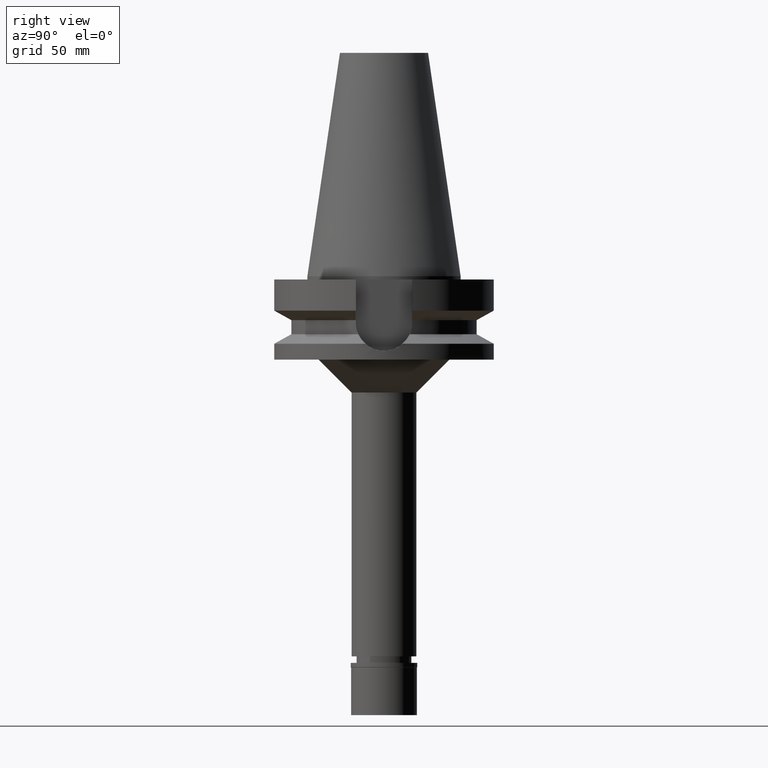
[diagram: clean part render]
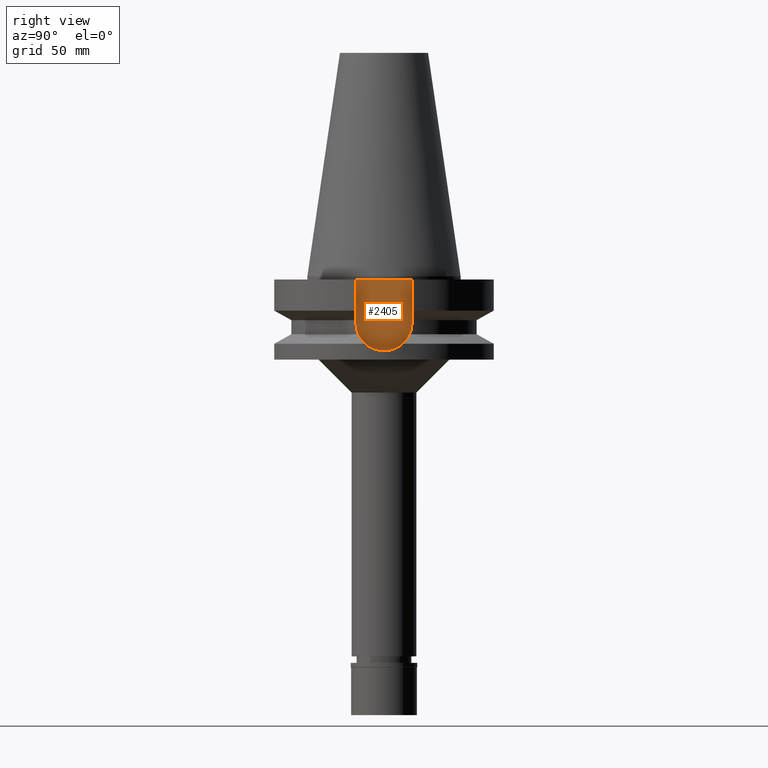
[diagram: same view with one face highlighted and labeled with its STEP entity id]
A machine part, right view. The second image highlights one B-rep face of the part: STEP entity #2405.
In plain terms, the highlighted planar face has unit normal (1, 0, 0).
Its self-contained STEP definition (entity closure, byte-faithful):
#222 = CARTESIAN_POINT ( 'NONE',  ( 35.39999999999999858, 12.84999999999999964, -1.500000000000000000 ) ) ;
#299 = ORIENTED_EDGE ( 'NONE', *, *, #3122, .T. ) ;
#335 = DIRECTION ( 'NONE',  ( 1.000000000000000000, 0.0000000000000000000, 0.0000000000000000000 ) ) ;
#387 = CARTESIAN_POINT ( 'NONE',  ( 35.39999999999999858, -12.84999999999999964, -21.14999999999999858 ) ) ;
#752 = VERTEX_POINT ( 'NONE', #2181 ) ;
#819 = VECTOR ( 'NONE', #2834, 1000.000000000000000 ) ;
#858 = CARTESIAN_POINT ( 'NONE',  ( 35.39999999999999858, -12.84999999999999964, -21.14999999999999858 ) ) ;
#912 = EDGE_LOOP ( 'NONE', ( #1087, #1065, #2700, #299 ) ) ;
#967 = VERTEX_POINT ( 'NONE', #1006 ) ;
#968 = VECTOR ( 'NONE', #1867, 1000.000000000000000 ) ;
#1006 = CARTESIAN_POINT ( 'NONE',  ( 35.39999999999999858, -12.84999999999999964, -1.500000000000000000 ) ) ;
#1065 = ORIENTED_EDGE ( 'NONE', *, *, #1255, .F. ) ;
#1087 = ORIENTED_EDGE ( 'NONE', *, *, #3025, .F. ) ;
#1153 = LINE ( 'NONE', #2133, #819 ) ;
#1194 = CARTESIAN_POINT ( 'NONE',  ( 35.39999999999999858, 0.0000000000000000000, -21.14999999999999858 ) ) ;
#1227 = VECTOR ( 'NONE', #1870, 1000.000000000000000 ) ;
#1228 = CIRCLE ( 'NONE', #2409, 12.84999999999999964 ) ;
#1255 = EDGE_CURVE ( 'NONE', #752, #1455, #1228, .T. ) ;
#1299 = VERTEX_POINT ( 'NONE', #2959 ) ;
#1443 = DIRECTION ( 'NONE',  ( 0.0000000000000000000, 1.000000000000000000, 0.0000000000000000000 ) ) ;
#1455 = VERTEX_POINT ( 'NONE', #858 ) ;
#1867 = DIRECTION ( 'NONE',  ( 0.0000000000000000000, 0.0000000000000000000, 1.000000000000000000 ) ) ;
#1870 = DIRECTION ( 'NONE',  ( 0.0000000000000000000, 0.0000000000000000000, -1.000000000000000000 ) ) ;
#2076 = CARTESIAN_POINT ( 'NONE',  ( 35.39999999999999858, 0.0000000000000000000, 0.0000000000000000000 ) ) ;
#2133 = CARTESIAN_POINT ( 'NONE',  ( 35.39999999999999858, 12.84999999999999964, -1.500000000000000000 ) ) ;
#2181 = CARTESIAN_POINT ( 'NONE',  ( 35.39999999999999858, 12.84999999999999964, -21.14999999999999858 ) ) ;
#2308 = PLANE ( 'NONE',  #3076 ) ;
#2405 = ADVANCED_FACE ( 'NONE', ( #3037 ), #2308, .T. ) ;
#2409 = AXIS2_PLACEMENT_3D ( 'NONE', #1194, #2658, #1443 ) ;
#2609 = LINE ( 'NONE', #387, #968 ) ;
#2658 = DIRECTION ( 'NONE',  ( -1.000000000000000000, 0.0000000000000000000, 0.0000000000000000000 ) ) ;
#2691 = EDGE_CURVE ( 'NONE', #1299, #752, #3101, .T. ) ;
#2700 = ORIENTED_EDGE ( 'NONE', *, *, #2691, .F. ) ;
#2761 = DIRECTION ( 'NONE',  ( 0.0000000000000000000, 1.000000000000000000, 0.0000000000000000000 ) ) ;
#2834 = DIRECTION ( 'NONE',  ( 0.0000000000000000000, -1.000000000000000000, 0.0000000000000000000 ) ) ;
#2959 = CARTESIAN_POINT ( 'NONE',  ( 35.39999999999999858, 12.84999999999999964, -1.500000000000000000 ) ) ;
#3025 = EDGE_CURVE ( 'NONE', #1455, #967, #2609, .T. ) ;
#3037 = FACE_OUTER_BOUND ( 'NONE', #912, .T. ) ;
#3076 = AXIS2_PLACEMENT_3D ( 'NONE', #2076, #335, #2761 ) ;
#3101 = LINE ( 'NONE', #222, #1227 ) ;
#3122 = EDGE_CURVE ( 'NONE', #1299, #967, #1153, .T. ) ;